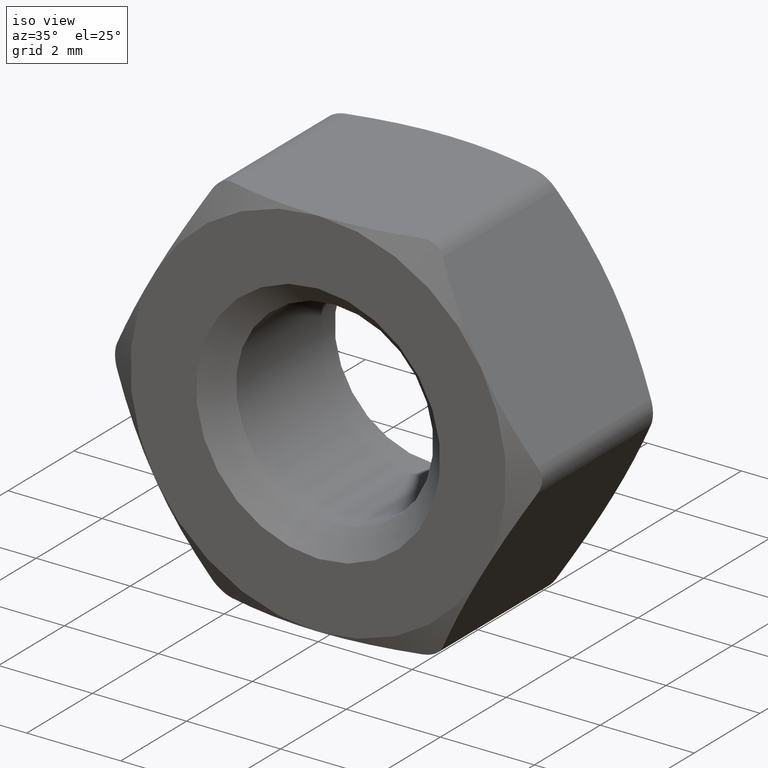
[diagram: clean part render]
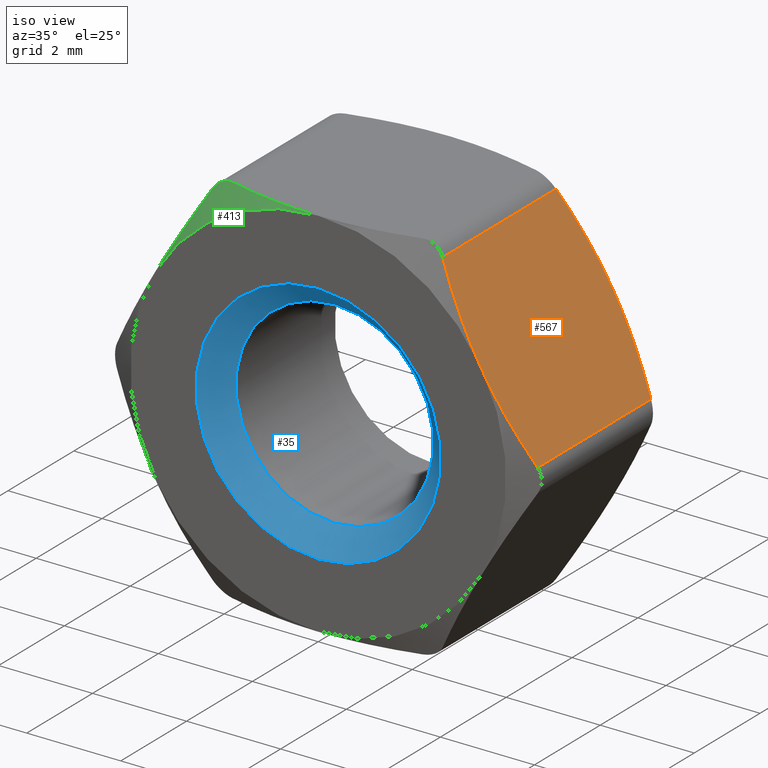
[diagram: same view with three faces highlighted in distinct colors, each labeled with its STEP entity id]
A machine part, iso view with three faces highlighted in distinct colors.
Their STEP definitions:

[orange] entity #567 — the highlighted planar face has unit normal (-0.866, 0, -0.5).
#50 = VECTOR ( 'NONE', #1118, 1000.000000000000000 ) ;
#61 = B_SPLINE_CURVE_WITH_KNOTS ( 'NONE', 3,
 ( #1563, #1278, #1711, #1287, #1418, #1575 ),
 .UNSPECIFIED., .F., .F.,
 ( 4, 2, 4 ),
 ( 0.002336974151641543800, 0.003352693107047598600, 0.004368412062453653700 ),
 .UNSPECIFIED. ) ;
#66 = LINE ( 'NONE', #607, #50 ) ;
#85 = DIRECTION ( 'NONE',  ( -0.8660254037844388200, 0.0000000000000000000, -0.4999999999999998300 ) ) ;
#160 = VERTEX_POINT ( 'NONE', #967 ) ;
#199 = VECTOR ( 'NONE', #903, 1000.000000000000000 ) ;
#240 = ORIENTED_EDGE ( 'NONE', *, *, #1675, .T. ) ;
#293 = CARTESIAN_POINT ( 'NONE',  ( 3.464101615137754400, -1.999999999999999600, 2.000000000000000400 ) ) ;
#308 = B_SPLINE_CURVE_WITH_KNOTS ( 'NONE', 3,
 ( #652, #379, #371, #1314, #502, #897 ),
 .UNSPECIFIED., .F., .F.,
 ( 4, 2, 4 ),
 ( 0.002336974151641540800, 0.003352693107047596800, 0.004368412062453652800 ),
 .UNSPECIFIED. ) ;
#371 = CARTESIAN_POINT ( 'NONE',  ( 3.121991427988904300, 1.974036377689811500, 2.592552225928717000 ) ) ;
#379 = CARTESIAN_POINT ( 'NONE',  ( 3.293077073406438500, 1.999999999999999600, 2.296223195619830500 ) ) ;
#412 = EDGE_CURVE ( 'NONE', #1307, #816, #61, .T. ) ;
#448 = CARTESIAN_POINT ( 'NONE',  ( 3.464101615137754400, 1.999999999999999600, 2.000000000000000400 ) ) ;
#502 = CARTESIAN_POINT ( 'NONE',  ( 2.618897511130735500, 1.808031168384830700, 3.463936450905897000 ) ) ;
#567 = ADVANCED_FACE ( 'NONE', ( #917 ), #1738, .F. ) ;
#607 = CARTESIAN_POINT ( 'NONE',  ( 2.453738644055914800, 2.000000000000000000, 3.750000000000000000 ) ) ;
#652 = CARTESIAN_POINT ( 'NONE',  ( 3.464101615137754400, 1.999999999999999600, 2.000000000000000400 ) ) ;
#669 = CARTESIAN_POINT ( 'NONE',  ( 3.807544760618615200, 1.999999999999999600, 1.405139022515887300 ) ) ;
#679 = EDGE_CURVE ( 'NONE', #1303, #1447, #308, .T. ) ;
#687 = ORIENTED_EDGE ( 'NONE', *, *, #904, .T. ) ;
#816 = VERTEX_POINT ( 'NONE', #1621 ) ;
#847 = CARTESIAN_POINT ( 'NONE',  ( 3.120658469656899700, -1.999999999999999600, 2.594860977484118700 ) ) ;
#864 = AXIS2_PLACEMENT_3D ( 'NONE', #1442, #85, #921 ) ;
#880 = VERTEX_POINT ( 'NONE', #1208 ) ;
#897 = CARTESIAN_POINT ( 'NONE',  ( 2.453738644055914800, 1.722038627381834400, 3.750000000000000000 ) ) ;
#903 = DIRECTION ( 'NONE',  ( -0.0000000000000000000, 1.000000000000000000, -0.0000000000000000000 ) ) ;
#904 = EDGE_CURVE ( 'NONE', #880, #1303, #1192, .T. ) ;
#917 = FACE_OUTER_BOUND ( 'NONE', #1091, .T. ) ;
#921 = DIRECTION ( 'NONE',  ( -0.4999999999999997800, 0.0000000000000000000, 0.8660254037844387100 ) ) ;
#927 = CARTESIAN_POINT ( 'NONE',  ( 4.474464586222178600, 1.722038627380493300, 0.2499999999955401000 ) ) ;
#967 = CARTESIAN_POINT ( 'NONE',  ( 2.453738644053336000, -1.722038627380491300, 3.750000000004466600 ) ) ;
#973 = CARTESIAN_POINT ( 'NONE',  ( 3.464101615137754400, -1.999999999999999600, 2.000000000000000400 ) ) ;
#1022 = EDGE_CURVE ( 'NONE', #160, #1307, #1403, .T. ) ;
#1058 = CARTESIAN_POINT ( 'NONE',  ( 4.474464586219600200, 2.000000000000000000, 0.2500000000000080500 ) ) ;
#1060 = LINE ( 'NONE', #1058, #199 ) ;
#1061 = CARTESIAN_POINT ( 'NONE',  ( 4.143403249520809500, 1.894410877657314500, 0.8234150555839784300 ) ) ;
#1077 = CARTESIAN_POINT ( 'NONE',  ( 2.784799980754705000, -1.894410877657313400, 3.176584944416027200 ) ) ;
#1091 = EDGE_LOOP ( 'NONE', ( #1174, #240, #687, #1265, #1100, #1130 ) ) ;
#1100 = ORIENTED_EDGE ( 'NONE', *, *, #1448, .T. ) ;
#1118 = DIRECTION ( 'NONE',  ( 0.0000000000000000000, -1.000000000000000000, 0.0000000000000000000 ) ) ;
#1130 = ORIENTED_EDGE ( 'NONE', *, *, #1022, .T. ) ;
#1174 = ORIENTED_EDGE ( 'NONE', *, *, #412, .T. ) ;
#1192 = B_SPLINE_CURVE_WITH_KNOTS ( 'NONE', 3,
 ( #927, #1061, #669, #1203 ),
 .UNSPECIFIED., .F., .F.,
 ( 4, 4 ),
 ( 0.0002972568722511853200, 0.002336974151641540800 ),
 .UNSPECIFIED. ) ;
#1194 = CARTESIAN_POINT ( 'NONE',  ( 2.453738644053336000, -1.722038627380491300, 3.750000000004466600 ) ) ;
#1203 = CARTESIAN_POINT ( 'NONE',  ( 3.464101615137754400, 1.999999999999999600, 2.000000000000000400 ) ) ;
#1208 = CARTESIAN_POINT ( 'NONE',  ( 4.474464586222178600, 1.722038627380493300, 0.2499999999955401000 ) ) ;
#1265 = ORIENTED_EDGE ( 'NONE', *, *, #679, .T. ) ;
#1278 = CARTESIAN_POINT ( 'NONE',  ( 3.635126156869076000, -2.000000000000000000, 1.703776804380175500 ) ) ;
#1287 = CARTESIAN_POINT ( 'NONE',  ( 4.142813534267779700, -1.877925064878676100, 0.8244364723642262400 ) ) ;
#1303 = VERTEX_POINT ( 'NONE', #448 ) ;
#1307 = VERTEX_POINT ( 'NONE', #293 ) ;
#1314 = CARTESIAN_POINT ( 'NONE',  ( 2.785389696007735300, 1.877925064878674900, 3.175563527635780300 ) ) ;
#1403 = B_SPLINE_CURVE_WITH_KNOTS ( 'NONE', 3,
 ( #1194, #1077, #847, #973 ),
 .UNSPECIFIED., .F., .F.,
 ( 4, 4 ),
 ( 0.0002972568722511855300, 0.002336974151641543800 ),
 .UNSPECIFIED. ) ;
#1417 = CARTESIAN_POINT ( 'NONE',  ( 2.453738644055914800, 1.722038627381834400, 3.750000000000000000 ) ) ;
#1418 = CARTESIAN_POINT ( 'NONE',  ( 4.309305719144780300, -1.808031168384832500, 0.5360635490941102500 ) ) ;
#1442 = CARTESIAN_POINT ( 'NONE',  ( 2.309401076758508300, 2.000000000000000000, 4.000000000000000000 ) ) ;
#1447 = VERTEX_POINT ( 'NONE', #1417 ) ;
#1448 = EDGE_CURVE ( 'NONE', #1447, #160, #66, .T. ) ;
#1563 = CARTESIAN_POINT ( 'NONE',  ( 3.464101615137754400, -1.999999999999999600, 2.000000000000000400 ) ) ;
#1575 = CARTESIAN_POINT ( 'NONE',  ( 4.474464586219600200, -1.722038627381836000, 0.2500000000000072200 ) ) ;
#1621 = CARTESIAN_POINT ( 'NONE',  ( 4.474464586219600200, -1.722038627381836000, 0.2500000000000072200 ) ) ;
#1675 = EDGE_CURVE ( 'NONE', #816, #880, #1060, .T. ) ;
#1711 = CARTESIAN_POINT ( 'NONE',  ( 3.806211802286612500, -1.974036377689812000, 1.407447774071289400 ) ) ;
#1738 = PLANE ( 'NONE',  #864 ) ;

[blue] entity #35 — the highlighted conical surface has half-angle 45 deg.
#35 = ADVANCED_FACE ( 'NONE', ( #201, #1658 ), #793, .F. ) ;
#201 = FACE_BOUND ( 'NONE', #773, .T. ) ;
#203 = EDGE_CURVE ( 'NONE', #1142, #1142, #1473, .T. ) ;
#304 = DIRECTION ( 'NONE',  ( 0.0000000000000000000, 0.0000000000000000000, 1.000000000000000000 ) ) ;
#346 = AXIS2_PLACEMENT_3D ( 'NONE', #1649, #559, #304 ) ;
#445 = DIRECTION ( 'NONE',  ( 0.0000000000000000000, 0.0000000000000000000, 1.000000000000000000 ) ) ;
#559 = DIRECTION ( 'NONE',  ( -0.0000000000000000000, -1.000000000000000000, -0.0000000000000000000 ) ) ;
#583 = VERTEX_POINT ( 'NONE', #1454 ) ;
#664 = CIRCLE ( 'NONE', #346, 2.099999999999998300 ) ;
#773 = EDGE_LOOP ( 'NONE', ( #859 ) ) ;
#793 = CONICAL_SURFACE ( 'NONE', #1605, 2.599999999999997400, 0.7853981633974461700 ) ;
#859 = ORIENTED_EDGE ( 'NONE', *, *, #1214, .F. ) ;
#894 = AXIS2_PLACEMENT_3D ( 'NONE', #1615, #923, #445 ) ;
#923 = DIRECTION ( 'NONE',  ( 0.0000000000000000000, 1.000000000000000000, 0.0000000000000000000 ) ) ;
#1021 = EDGE_LOOP ( 'NONE', ( #1222 ) ) ;
#1031 = DIRECTION ( 'NONE',  ( 0.0000000000000000000, 0.0000000000000000000, -1.000000000000000000 ) ) ;
#1142 = VERTEX_POINT ( 'NONE', #1741 ) ;
#1214 = EDGE_CURVE ( 'NONE', #583, #583, #664, .T. ) ;
#1222 = ORIENTED_EDGE ( 'NONE', *, *, #203, .F. ) ;
#1304 = CARTESIAN_POINT ( 'NONE',  ( 0.0000000000000000000, -2.000000000000000000, 0.0000000000000000000 ) ) ;
#1454 = CARTESIAN_POINT ( 'NONE',  ( 0.0000000000000000000, -1.499999999999998700, 2.099999999999998300 ) ) ;
#1473 = CIRCLE ( 'NONE', #894, 2.599999999999997400 ) ;
#1589 = DIRECTION ( 'NONE',  ( -0.0000000000000000000, -1.000000000000000000, -0.0000000000000000000 ) ) ;
#1605 = AXIS2_PLACEMENT_3D ( 'NONE', #1304, #1589, #1031 ) ;
#1615 = CARTESIAN_POINT ( 'NONE',  ( 0.0000000000000000000, -2.000000000000000000, 0.0000000000000000000 ) ) ;
#1649 = CARTESIAN_POINT ( 'NONE',  ( 0.0000000000000000000, -1.499999999999998700, 0.0000000000000000000 ) ) ;
#1658 = FACE_OUTER_BOUND ( 'NONE', #1021, .T. ) ;
#1741 = CARTESIAN_POINT ( 'NONE',  ( 0.0000000000000000000, -2.000000000000000000, 2.599999999999997400 ) ) ;

[green] entity #413 — the highlighted conical surface has half-angle 60 deg.
#11 = CARTESIAN_POINT ( 'NONE',  ( -2.020725942164840500, -1.722038627381535800, 4.000000000000000000 ) ) ;
#174 = CARTESIAN_POINT ( 'NONE',  ( -3.464101615137754800, -1.999999999999998700, 2.000000000000001300 ) ) ;
#189 = CARTESIAN_POINT ( 'NONE',  ( -2.106829993848221300, -1.699622918415538300, 3.999999999999999100 ) ) ;
#195 = AXIS2_PLACEMENT_3D ( 'NONE', #1284, #619, #1724 ) ;
#197 = CARTESIAN_POINT ( 'NONE',  ( -2.346538960722535100, -1.687354054465851600, 3.889328683676267500 ) ) ;
#198 = B_SPLINE_CURVE_WITH_KNOTS ( 'NONE', 3,
 ( #174, #451, #1256, #1390, #1525, #1673 ),
 .UNSPECIFIED., .F., .F.,
 ( 4, 2, 4 ),
 ( 0.002336974151641550400, 0.003352693107047607200, 0.004368412062453664100 ),
 .UNSPECIFIED. ) ;
#205 = ORIENTED_EDGE ( 'NONE', *, *, #1419, .T. ) ;
#234 = EDGE_CURVE ( 'NONE', #877, #879, #198, .T. ) ;
#245 = ORIENTED_EDGE ( 'NONE', *, *, #962, .F. ) ;
#246 = CARTESIAN_POINT ( 'NONE',  ( -1.352887352662812000, -1.878785010602692400, 4.000000000000000000 ) ) ;
#267 = CARTESIAN_POINT ( 'NONE',  ( -2.020725942164840500, -1.722038627381535800, 4.000000000000000000 ) ) ;
#386 = CARTESIAN_POINT ( 'NONE',  ( -0.3405059322956590100, -1.999999999999999100, 4.000000000000000000 ) ) ;
#413 = ADVANCED_FACE ( 'NONE', ( #1544 ), #1144, .T. ) ;
#417 = CARTESIAN_POINT ( 'NONE',  ( -2.453738644055911200, -1.722038627381834400, 3.750000000000000400 ) ) ;
#447 = EDGE_LOOP ( 'NONE', ( #245, #205, #942, #1242 ) ) ;
#451 = CARTESIAN_POINT ( 'NONE',  ( -3.293077073406436300, -2.000000000000000400, 2.296223195619830000 ) ) ;
#473 = AXIS2_PLACEMENT_3D ( 'NONE', #1175, #1461, #915 ) ;
#479 = B_SPLINE_CURVE_WITH_KNOTS ( 'NONE', 3,
 ( #1003, #189, #1697, #197, #1124, #1704 ),
 .UNSPECIFIED., .F., .F.,
 ( 4, 2, 4 ),
 ( 1.116554099108654400E-015, 0.0002633584510819680500, 0.0005267169021628194800 ),
 .UNSPECIFIED. ) ;
#508 = CARTESIAN_POINT ( 'NONE',  ( -3.386450907888039500E-016, -1.999999999999999100, 4.000000000000000000 ) ) ;
#554 = CARTESIAN_POINT ( 'NONE',  ( -3.464101615137754800, -1.999999999999998700, 2.000000000000001300 ) ) ;
#619 = DIRECTION ( 'NONE',  ( 1.693225453944021200E-016, 1.000000000000000000, 0.0000000000000000000 ) ) ;
#631 = EDGE_CURVE ( 'NONE', #1753, #877, #1193, .T. ) ;
#776 = VERTEX_POINT ( 'NONE', #11 ) ;
#877 = VERTEX_POINT ( 'NONE', #554 ) ;
#879 = VERTEX_POINT ( 'NONE', #417 ) ;
#915 = DIRECTION ( 'NONE',  ( 0.0000000000000000000, 0.0000000000000000000, 1.000000000000000000 ) ) ;
#942 = ORIENTED_EDGE ( 'NONE', *, *, #234, .F. ) ;
#962 = EDGE_CURVE ( 'NONE', #776, #1753, #1710, .T. ) ;
#1003 = CARTESIAN_POINT ( 'NONE',  ( -2.020725942164840500, -1.722038627381535800, 4.000000000000000000 ) ) ;
#1124 = CARTESIAN_POINT ( 'NONE',  ( -2.410673497673599300, -1.699616087001950300, 3.824591021569558900 ) ) ;
#1144 = CONICAL_SURFACE ( 'NONE', #195, 4.000000000000000000, 1.047197551196603800 ) ;
#1175 = CARTESIAN_POINT ( 'NONE',  ( -3.386450907888040900E-016, -2.000000000000000000, 1.173101005959984200E-015 ) ) ;
#1193 = CIRCLE ( 'NONE', #473, 3.999999999999997300 ) ;
#1242 = ORIENTED_EDGE ( 'NONE', *, *, #631, .F. ) ;
#1256 = CARTESIAN_POINT ( 'NONE',  ( -3.121991427988900300, -1.974036377689812000, 2.592552225928717000 ) ) ;
#1284 = CARTESIAN_POINT ( 'NONE',  ( -3.386450907888040900E-016, -1.999999999999999100, 0.0000000000000000000 ) ) ;
#1334 = CARTESIAN_POINT ( 'NONE',  ( -3.386450907888039500E-016, -1.999999999999999100, 4.000000000000000000 ) ) ;
#1390 = CARTESIAN_POINT ( 'NONE',  ( -2.785389696007732700, -1.877925064878676100, 3.175563527635780300 ) ) ;
#1419 = EDGE_CURVE ( 'NONE', #776, #879, #479, .T. ) ;
#1461 = DIRECTION ( 'NONE',  ( -0.0000000000000000000, -1.000000000000000000, -0.0000000000000000000 ) ) ;
#1500 = CARTESIAN_POINT ( 'NONE',  ( -1.689722676345455600, -1.808209634764443400, 4.000000000000000000 ) ) ;
#1525 = CARTESIAN_POINT ( 'NONE',  ( -2.618897511130732000, -1.808031168384831600, 3.463936450905896500 ) ) ;
#1544 = FACE_OUTER_BOUND ( 'NONE', #447, .T. ) ;
#1673 = CARTESIAN_POINT ( 'NONE',  ( -2.453738644055911200, -1.722038627381834400, 3.750000000000000400 ) ) ;
#1697 = CARTESIAN_POINT ( 'NONE',  ( -2.194171834018526100, -1.687431351220835000, 3.977124165804041900 ) ) ;
#1704 = CARTESIAN_POINT ( 'NONE',  ( -2.453738644055911200, -1.722038627381834400, 3.750000000000000400 ) ) ;
#1710 = B_SPLINE_CURVE_WITH_KNOTS ( 'NONE', 3,
 ( #267, #1500, #246, #1764, #386, #1334 ),
 .UNSPECIFIED., .F., .F.,
 ( 4, 2, 4 ),
 ( 0.004418079740298255100, 0.005437323299472805000, 0.006456566858647354100 ),
 .UNSPECIFIED. ) ;
#1724 = DIRECTION ( 'NONE',  ( 1.000000000000000000, -2.168404344971008900E-016, 0.0000000000000000000 ) ) ;
#1753 = VERTEX_POINT ( 'NONE', #508 ) ;
#1764 = CARTESIAN_POINT ( 'NONE',  ( -0.6790938342383960900, -1.974552928243637800, 4.000000000000000000 ) ) ;